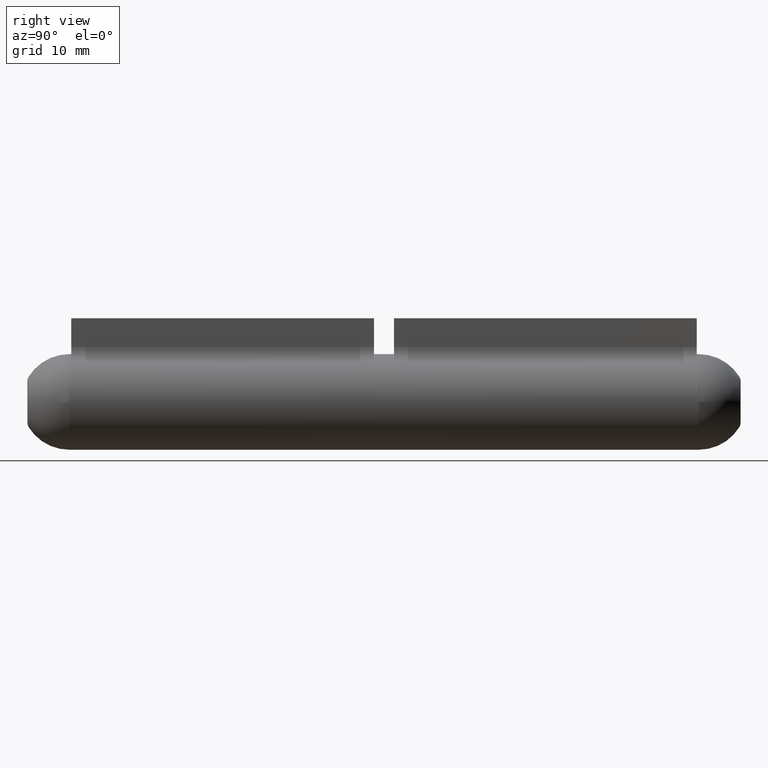
[diagram: clean part render]
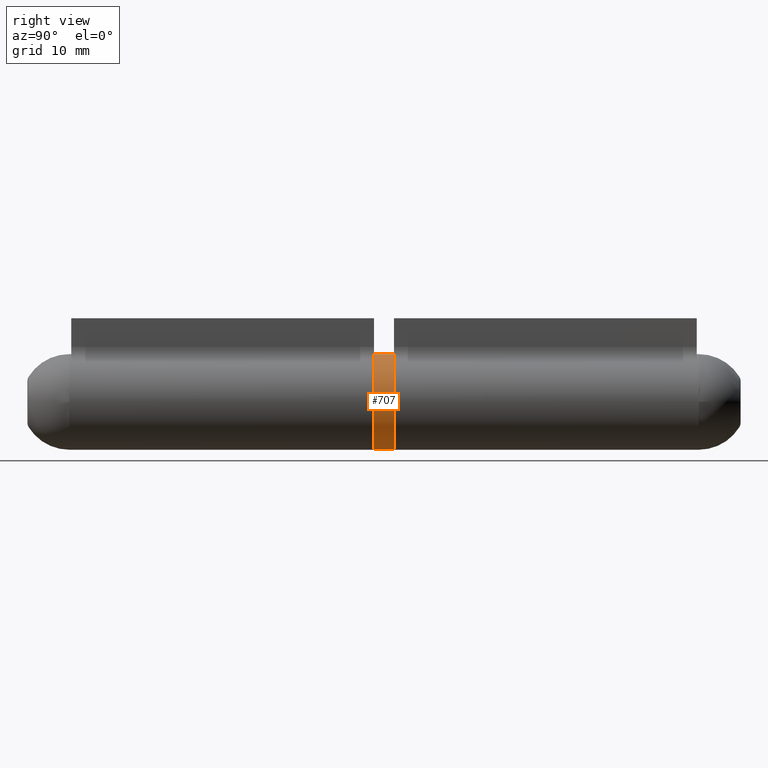
[diagram: same view with one face highlighted and labeled with its STEP entity id]
A machine part, right view. The second image highlights one B-rep face of the part: STEP entity #707.
In plain terms, the highlighted cylindrical surface (partial cylindrical patch) has radius 6 mm, axis along (-0, -1, -0).
Its self-contained STEP definition (entity closure, byte-faithful):
#379 = CARTESIAN_POINT ( 'NONE',  ( 0.000000000000000000, 21.50000000000000000, 0.000000000000000000 ) ) ;
#470 = CARTESIAN_POINT ( 'NONE',  ( 0.000000000000000000, 21.50000000000000000, -6.000000000000002665 ) ) ;
#511 = EDGE_LOOP ( 'NONE', ( #7295, #12455, #10970, #4728 ) ) ;
#707 = ADVANCED_FACE ( 'NONE', ( #3041 ), #8135, .T. ) ;
#759 = VERTEX_POINT ( 'NONE', #470 ) ;
#1020 = LINE ( 'NONE', #10114, #12729 ) ;
#1029 = CARTESIAN_POINT ( 'NONE',  ( 7.347880794884122694E-16, 21.50000000000000000, 6.000000000000002665 ) ) ;
#1316 = CARTESIAN_POINT ( 'NONE',  ( 7.347880794884122694E-16, 19.00000000000000000, 6.000000000000002665 ) ) ;
#1597 = DIRECTION ( 'NONE',  ( 0.000000000000000000, 1.000000000000000000, 0.000000000000000000 ) ) ;
#2387 = CARTESIAN_POINT ( 'NONE',  ( 0.000000000000000000, 19.00000000000000000, 0.000000000000000000 ) ) ;
#2533 = DIRECTION ( 'NONE',  ( 0.000000000000000000, 0.000000000000000000, 1.000000000000000000 ) ) ;
#2744 = CARTESIAN_POINT ( 'NONE',  ( 0.000000000000000000, 21.50000000000000000, 0.000000000000000000 ) ) ;
#2945 = EDGE_CURVE ( 'NONE', #10831, #759, #8813, .T. ) ;
#3041 = FACE_OUTER_BOUND ( 'NONE', #511, .T. ) ;
#3282 = CARTESIAN_POINT ( 'NONE',  ( 0.000000000000000000, 19.00000000000000000, -6.000000000000002665 ) ) ;
#4332 = LINE ( 'NONE', #7383, #5740 ) ;
#4365 = DIRECTION ( 'NONE',  ( -0.000000000000000000, -1.000000000000000000, -0.000000000000000000 ) ) ;
#4518 = AXIS2_PLACEMENT_3D ( 'NONE', #379, #10335, #6176 ) ;
#4728 = ORIENTED_EDGE ( 'NONE', *, *, #6951, .F. ) ;
#4992 = DIRECTION ( 'NONE',  ( 0.000000000000000000, 0.000000000000000000, 1.000000000000000000 ) ) ;
#5031 = DIRECTION ( 'NONE',  ( -0.000000000000000000, -1.000000000000000000, -0.000000000000000000 ) ) ;
#5740 = VECTOR ( 'NONE', #5031, 1000.000000000000000 ) ;
#6176 = DIRECTION ( 'NONE',  ( 0.000000000000000000, 0.000000000000000000, -1.000000000000000000 ) ) ;
#6951 = EDGE_CURVE ( 'NONE', #759, #12971, #1020, .T. ) ;
#7295 = ORIENTED_EDGE ( 'NONE', *, *, #2945, .F. ) ;
#7383 = CARTESIAN_POINT ( 'NONE',  ( 7.347880794884122694E-16, 21.50000000000000000, 6.000000000000002665 ) ) ;
#7575 = AXIS2_PLACEMENT_3D ( 'NONE', #2387, #11479, #2533 ) ;
#8135 = CYLINDRICAL_SURFACE ( 'NONE', #4518, 6.000000000000002665 ) ;
#8813 = CIRCLE ( 'NONE', #12519, 6.000000000000002665 ) ;
#10114 = CARTESIAN_POINT ( 'NONE',  ( 0.000000000000000000, 21.50000000000000000, -6.000000000000002665 ) ) ;
#10335 = DIRECTION ( 'NONE',  ( -0.000000000000000000, -1.000000000000000000, -0.000000000000000000 ) ) ;
#10641 = EDGE_CURVE ( 'NONE', #10831, #12759, #4332, .T. ) ;
#10831 = VERTEX_POINT ( 'NONE', #1029 ) ;
#10873 = EDGE_CURVE ( 'NONE', #12759, #12971, #12871, .T. ) ;
#10970 = ORIENTED_EDGE ( 'NONE', *, *, #10873, .T. ) ;
#11479 = DIRECTION ( 'NONE',  ( 0.000000000000000000, 1.000000000000000000, 0.000000000000000000 ) ) ;
#12455 = ORIENTED_EDGE ( 'NONE', *, *, #10641, .T. ) ;
#12519 = AXIS2_PLACEMENT_3D ( 'NONE', #2744, #1597, #4992 ) ;
#12729 = VECTOR ( 'NONE', #4365, 1000.000000000000000 ) ;
#12759 = VERTEX_POINT ( 'NONE', #1316 ) ;
#12871 = CIRCLE ( 'NONE', #7575, 6.000000000000002665 ) ;
#12971 = VERTEX_POINT ( 'NONE', #3282 ) ;